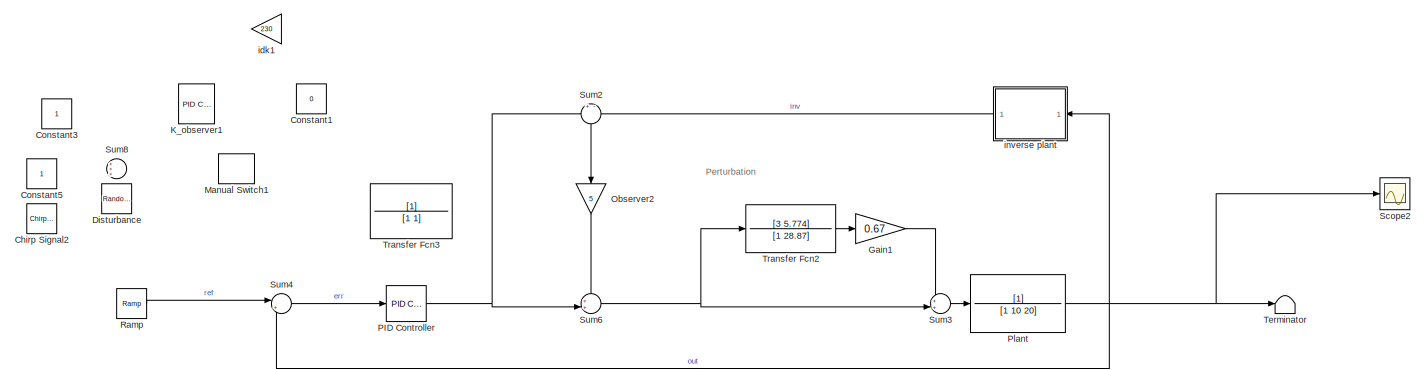
[diagram: root canvas - part 1/2, full width, middle band]
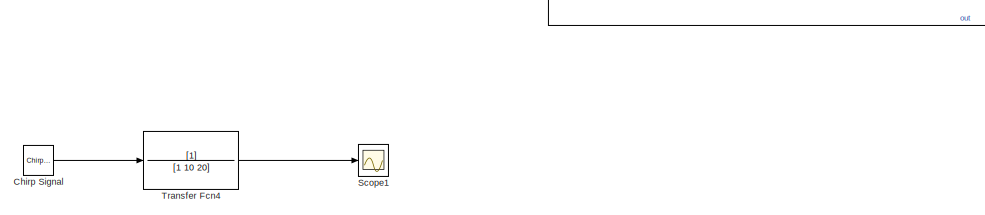
[diagram: root canvas - part 2/2, bottom left region]
MODEL slx_f56b682bda65
KIND model
CONFIG AbsTol = auto
CONFIG EnableMultiTasking = off
CONFIG FixedStep = auto
CONFIG MaxStep = auto
CONFIG MinStep = auto
CONFIG RelTol = 1e-8
CONFIG SampleTimeConstraint = Unconstrained
CONFIG SolverName = VariableStepAuto
CONFIG StartTime = 0.0
CONFIG StopTime = 500
BLOCK [Reference] Chirp Signal  REF=simulink/Sources/Chirp Signal
  Commented = on
  Ports = [0, 1]
  SourceBlock = simulink/Sources/Chirp Signal
  SourceProductBaseCode = SL
  SourceType = chirp
BLOCK [Reference] Chirp Signal2  REF=simulink/Sources/Chirp Signal
  Commented = on
  Ports = [0, 1]
  SourceBlock = simulink/Sources/Chirp Signal
  SourceProductBaseCode = SL
  SourceType = chirp
BLOCK [Constant] Constant1
  NameLocation = left
  Value = 0
BLOCK [Constant] Constant3
  Commented = on
BLOCK [Constant] Constant5
  Commented = on
BLOCK [RandomNumber] Disturbance
  Commented = on
  SampleTime = 0.1
BLOCK [Gain] Gain1
  Gain = 0.67
BLOCK [Reference] K_observer1  REF=slpidlib/PID Controller
  NameLocation = left
  Ports = [1, 1]
  SourceBlock = slpidlib/PID Controller
  SourceProductBaseCode = SL
  SourceType = PID 1dof
BLOCK [ManualSwitch] Manual Switch1
  NameLocation = left
BLOCK [Gain] Observer2
  Gain = 5
  NameLocation = left
BLOCK [Reference] PID Controller  REF=slpidlib/PID Controller
  Ports = [1, 1]
  SourceBlock = slpidlib/PID Controller
  SourceProductBaseCode = SL
  SourceType = PID 1dof
BLOCK [TransferFcn] Plant
  Denominator = [1 10 20]
BLOCK [Reference] Ramp  REF=simulink/Sources/Ramp
  Ports = [0, 1]
  SourceBlock = simulink/Sources/Ramp
  SourceProductBaseCode = SL
  SourceType = Ramp
BLOCK [Scope] Scope1
  Commented = on
  Floating = off
  NumInputPorts = 1
  Ports = [1]
  ScopeSpecificationString = Simulink.scopes.TimeScopeBlockCfg('CurrentConfiguration', extmgr.ConfigurationSet(extmgr.Configuration('Core','General UI',true),extmgr.Configuration('Core','Source UI',true),extmgr.Configuration('Sources','WiredSimulink',true,'DataLoggingVariableName','ScopeData1'),extmgr.Configuration('Visuals','Time Domain',true,'SerializedDisplays',{struct('MinYLimReal','-0.06128','MaxYLimReal','0.06197','YLab...<+1401ch>
BLOCK [Scope] Scope2
  Floating = off
  NumInputPorts = 1
  Ports = [1]
  ScopeSpecificationString = Simulink.scopes.TimeScopeBlockCfg('CurrentConfiguration', extmgr.ConfigurationSet(extmgr.Configuration('Core','General UI',true),extmgr.Configuration('Core','Source UI',true),extmgr.Configuration('Sources','WiredSimulink',true,'DataLoggingVariableName','ScopeData2'),extmgr.Configuration('Visuals','Time Domain',true,'SerializedDisplays',{struct('MinYLimReal','-0.14299','MaxYLimReal','1.28688','YLab...<+1471ch>
BLOCK [Sum] Sum2
  Inputs = +-
  NameLocation = left
  Ports = [2, 1]
BLOCK [Sum] Sum3
  Inputs = ++|
  Ports = [2, 1]
BLOCK [Sum] Sum4
  Inputs = |+-
  Ports = [2, 1]
BLOCK [Sum] Sum6
  Inputs = ++|
  Ports = [2, 1]
BLOCK [Sum] Sum8
  Commented = on
  Inputs = +++
  NameLocation = left
  Ports = [3, 1]
BLOCK [Terminator] Terminator
BLOCK [TransferFcn] Transfer Fcn2
  Denominator = [1 28.87]
  Numerator = [3 5.774]
BLOCK [TransferFcn] Transfer Fcn3
  Denominator = [1 1]
  NameLocation = left
BLOCK [TransferFcn] Transfer Fcn4
  Commented = on
  Denominator = [1 10 20]
BLOCK [Gain] idk1
  Commented = on
  Gain = 230
  NameLocation = top
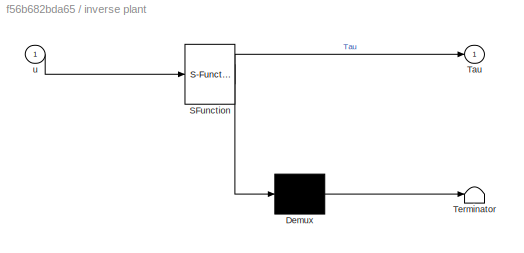
BLOCK [SubSystem] inverse plant
  ErrorFcn = Stateflow.Translate.translate
  NameLocation = top
  PermitHierarchicalResolution = ExplicitOnly
  Ports = [1, 1]
  RequestExecContextInheritance = off
  SFBlockType = MATLAB Function
  TreatAsAtomicUnit = on
BLOCK [Demux] inverse plant/ Demux 
  Outputs = 1
  Ports = [1, 1]
BLOCK [S-Function] inverse plant/ SFunction 
  EnableBusSupport = on
  FunctionName = sf_sfun
  PortCounts = [1 2]
  Ports = [1, 2]
  SFcnIsStateOwnerBlock = off
  SFunctionDeploymentMode = off
  Tag = Stateflow S-Function 2
BLOCK [Terminator] inverse plant/ Terminator 
BLOCK [Outport] inverse plant/Tau
BLOCK [Inport] inverse plant/u
ANNOTATION (root): Perturbation
LINE Chirp Signal:1 -> Transfer Fcn4:1
LINE Gain1:1 -> Sum3:1
LINE Observer2:1 -> Sum6:1
NET PID Controller:1 -> Sum2:1, Sum6:2
NET Plant:1 -> Scope2:1, Sum4:2, Terminator:1, inverse plant:1
LINE Ramp:1 -> Sum4:1
LINE Sum2:1 -> Observer2:1
LINE Sum3:1 -> Plant:1
LINE Sum4:1 -> PID Controller:1
NET Sum6:1 -> Sum3:2, Transfer Fcn2:1
LINE Transfer Fcn2:1 -> Gain1:1
LINE Transfer Fcn4:1 -> Scope1:1
LINE inverse plant:1 -> Sum2:2
note: NET lines group one-source signal fan-out (src -> all destinations, sorted); 1:1 wires keep LINE
CHART inverse plant states=1 transitions=1
  STATE_LABEL 'eML_blk_kernel()'
  STATE_LABEL 'SCRIPT:\nfunction Tau = fcn(u)\n\n\nw0 =   [0.1109    1.8951;\n        0.3359    1.7935;\n        0.0917   -0.4355;\n        0.0304   -0.8728;\n       -0.5977   -0.4124;\n       -0.5625   -0.6319;\n       -0.0741   -0.3888;\n        0.1372   -0.2209;\n        0.1885   -0.2184;\n       -0.0584   -0.5510];\n\nw1 = [0.0137   -0.2848   -0.7196   -0.4261    0.0613   -0.6198    0.5285    0.1554    0.1733   -0.1079   -...<+160ch>'
CHART  states=0 transitions=0
